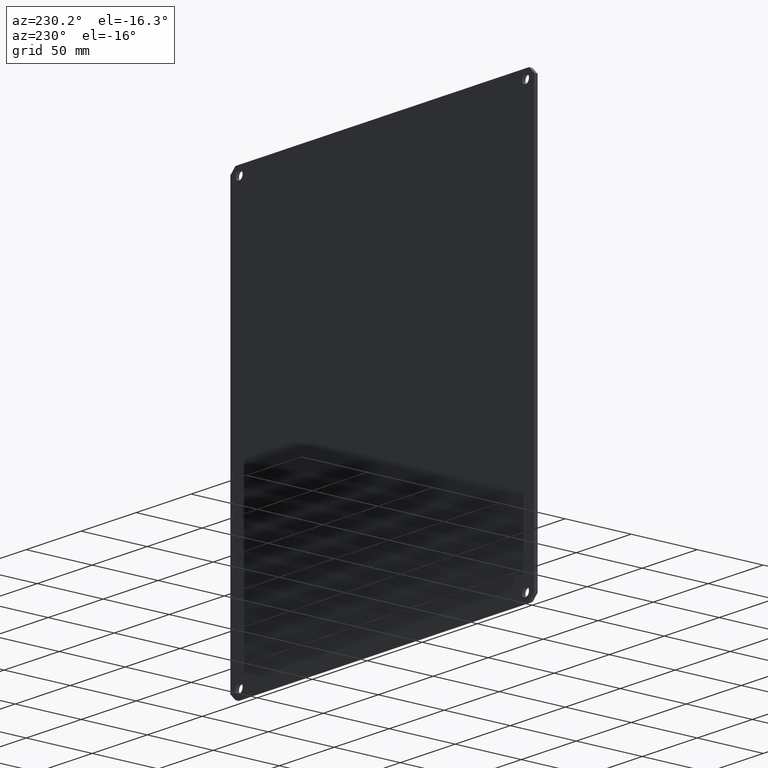
[diagram: clean part render]
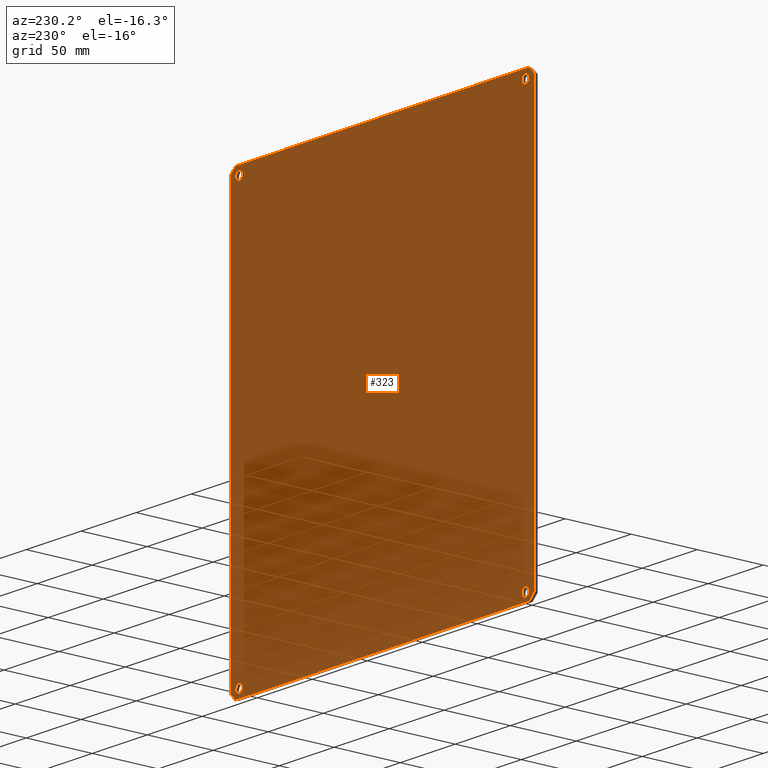
[diagram: same view with one face highlighted and labeled with its STEP entity id]
A machine part, auxiliary view. The second image highlights one B-rep face of the part: STEP entity #323.
In plain terms, the highlighted planar face has unit normal (0, 1, 0).
Its self-contained STEP definition (entity closure, byte-faithful):
#10 = VECTOR ( 'NONE', #126, 39.37007874015748900 ) ;
#17 = ORIENTED_EDGE ( 'NONE', *, *, #184, .T. ) ;
#28 = VERTEX_POINT ( 'NONE', #352 ) ;
#32 = VECTOR ( 'NONE', #183, 39.37007874015748100 ) ;
#36 = EDGE_CURVE ( 'NONE', #613, #439, #502, .T. ) ;
#38 = CARTESIAN_POINT ( 'NONE',  ( -0.9756477862797050500, -8.161220590614481900, 2.967902669980988100 ) ) ;
#40 = CIRCLE ( 'NONE', #555, 0.1249999999999993500 ) ;
#41 = ORIENTED_EDGE ( 'NONE', *, *, #223, .T. ) ;
#46 = EDGE_CURVE ( 'NONE', #367, #400, #218, .T. ) ;
#49 = VERTEX_POINT ( 'NONE', #75 ) ;
#51 = EDGE_CURVE ( 'NONE', #572, #314, #363, .T. ) ;
#65 = AXIS2_PLACEMENT_3D ( 'NONE', #509, #192, #563 ) ;
#71 = VECTOR ( 'NONE', #490, 39.37007874015748100 ) ;
#72 = EDGE_CURVE ( 'NONE', #82, #168, #487, .T. ) ;
#74 = VERTEX_POINT ( 'NONE', #180 ) ;
#75 = CARTESIAN_POINT ( 'NONE',  ( -11.22564778627970700, -8.161220590614481900, -9.157097330019011500 ) ) ;
#80 = DIRECTION ( 'NONE',  ( 0.0000000000000000000, 0.0000000000000000000, 1.000000000000000000 ) ) ;
#82 = VERTEX_POINT ( 'NONE', #181 ) ;
#88 = ORIENTED_EDGE ( 'NONE', *, *, #118, .F. ) ;
#89 = EDGE_CURVE ( 'NONE', #74, #154, #474, .T. ) ;
#90 = CARTESIAN_POINT ( 'NONE',  ( -0.9756477862797050500, -8.161220590614481900, 2.842902669980988100 ) ) ;
#96 = CARTESIAN_POINT ( 'NONE',  ( -11.22564778627970700, -8.161220590614481900, -9.407097330019011500 ) ) ;
#103 = EDGE_LOOP ( 'NONE', ( #284, #520 ) ) ;
#111 = ORIENTED_EDGE ( 'NONE', *, *, #46, .F. ) ;
#113 = LINE ( 'NONE', #513, #399 ) ;
#114 = EDGE_LOOP ( 'NONE', ( #88, #324 ) ) ;
#118 = EDGE_CURVE ( 'NONE', #439, #613, #303, .T. ) ;
#120 = CARTESIAN_POINT ( 'NONE',  ( -11.22564778627971000, -8.161220590614481900, 2.967902669980988100 ) ) ;
#126 = DIRECTION ( 'NONE',  ( -0.7071067811865474600, -0.0000000000000000000, 0.7071067811865474600 ) ) ;
#139 = CARTESIAN_POINT ( 'NONE',  ( -11.22564778627970700, -8.161220590614481900, -9.282097330019011500 ) ) ;
#141 = LINE ( 'NONE', #557, #10 ) ;
#142 = ORIENTED_EDGE ( 'NONE', *, *, #51, .T. ) ;
#147 = CARTESIAN_POINT ( 'NONE',  ( -0.8431477862797096500, -8.161220590614481900, 3.217902669980989000 ) ) ;
#149 = VECTOR ( 'NONE', #386, 39.37007874015748100 ) ;
#154 = VERTEX_POINT ( 'NONE', #422 ) ;
#158 = FACE_BOUND ( 'NONE', #114, .T. ) ;
#164 = EDGE_CURVE ( 'NONE', #341, #49, #40, .T. ) ;
#168 = VERTEX_POINT ( 'NONE', #90 ) ;
#178 = DIRECTION ( 'NONE',  ( 0.0000000000000000000, 0.0000000000000000000, 1.000000000000000000 ) ) ;
#180 = CARTESIAN_POINT ( 'NONE',  ( -0.6631477862797056100, -8.161220590614481900, 3.037902669980984800 ) ) ;
#181 = CARTESIAN_POINT ( 'NONE',  ( -0.9756477862797050500, -8.161220590614481900, 3.092902669980988100 ) ) ;
#183 = DIRECTION ( 'NONE',  ( -1.000000000000000000, -0.0000000000000000000, -0.0000000000000000000 ) ) ;
#184 = EDGE_CURVE ( 'NONE', #154, #353, #113, .T. ) ;
#186 = CARTESIAN_POINT ( 'NONE',  ( -11.53814778627970700, -8.161220590614481900, -9.532097330019011500 ) ) ;
#190 = DIRECTION ( 'NONE',  ( 0.0000000000000000000, 0.0000000000000000000, 1.000000000000000000 ) ) ;
#192 = DIRECTION ( 'NONE',  ( 0.0000000000000000000, 1.000000000000000000, 0.0000000000000000000 ) ) ;
#197 = DIRECTION ( 'NONE',  ( 0.0000000000000000000, 0.0000000000000000000, 1.000000000000000000 ) ) ;
#199 = EDGE_LOOP ( 'NONE', ( #429, #542 ) ) ;
#203 = VECTOR ( 'NONE', #236, 39.37007874015748900 ) ;
#208 = EDGE_CURVE ( 'NONE', #400, #367, #494, .T. ) ;
#216 = DIRECTION ( 'NONE',  ( 0.0000000000000000000, 1.000000000000000000, 0.0000000000000000000 ) ) ;
#218 = CIRCLE ( 'NONE', #628, 0.1250000000000004400 ) ;
#219 = DIRECTION ( 'NONE',  ( 0.7071067811865453500, -0.0000000000000000000, -0.7071067811865496800 ) ) ;
#223 = EDGE_CURVE ( 'NONE', #612, #572, #637, .T. ) ;
#231 = EDGE_LOOP ( 'NONE', ( #41, #142, #393, #364, #470, #17, #396, #495 ) ) ;
#235 = CARTESIAN_POINT ( 'NONE',  ( -11.53814778627970700, -8.161220590614481900, 3.217902669980988100 ) ) ;
#236 = DIRECTION ( 'NONE',  ( 0.7071067811865516800, -0.0000000000000000000, 0.7071067811865431300 ) ) ;
#240 = CARTESIAN_POINT ( 'NONE',  ( -0.6631477862797078300, -8.161220590614481900, -9.532097330019011500 ) ) ;
#243 = DIRECTION ( 'NONE',  ( -1.714100701906988900E-016, -0.0000000000000000000, -1.000000000000000000 ) ) ;
#247 = DIRECTION ( 'NONE',  ( 0.0000000000000000000, -0.0000000000000000000, 1.000000000000000000 ) ) ;
#274 = CARTESIAN_POINT ( 'NONE',  ( -11.53814778627970700, -8.161220590614481900, -9.532097330019011500 ) ) ;
#284 = ORIENTED_EDGE ( 'NONE', *, *, #72, .F. ) ;
#286 = CARTESIAN_POINT ( 'NONE',  ( -6.190647786279674500, -8.161220590614481900, 8.565402669980986900 ) ) ;
#290 = FACE_OUTER_BOUND ( 'NONE', #231, .T. ) ;
#294 = DIRECTION ( 'NONE',  ( 0.0000000000000000000, 1.000000000000000000, 0.0000000000000000000 ) ) ;
#301 = EDGE_CURVE ( 'NONE', #353, #28, #469, .T. ) ;
#302 = CARTESIAN_POINT ( 'NONE',  ( -11.35814778627970700, -8.161220590614481900, 3.217902669980988100 ) ) ;
#303 = CIRCLE ( 'NONE', #65, 0.1249999999999999000 ) ;
#313 = FACE_BOUND ( 'NONE', #199, .T. ) ;
#314 = VERTEX_POINT ( 'NONE', #302 ) ;
#317 = AXIS2_PLACEMENT_3D ( 'NONE', #430, #414, #190 ) ;
#323 = ADVANCED_FACE ( 'NONE', ( #570, #158, #313, #438, #290 ), #558, .T. ) ;
#324 = ORIENTED_EDGE ( 'NONE', *, *, #36, .F. ) ;
#325 = EDGE_CURVE ( 'NONE', #168, #82, #551, .T. ) ;
#334 = EDGE_LOOP ( 'NONE', ( #111, #586 ) ) ;
#338 = VECTOR ( 'NONE', #219, 39.37007874015748900 ) ;
#341 = VERTEX_POINT ( 'NONE', #96 ) ;
#342 = EDGE_CURVE ( 'NONE', #28, #612, #141, .T. ) ;
#352 = CARTESIAN_POINT ( 'NONE',  ( -11.35814778627970200, -8.161220590614481900, -9.532097330019013300 ) ) ;
#353 = VERTEX_POINT ( 'NONE', #425 ) ;
#356 = CARTESIAN_POINT ( 'NONE',  ( -11.53814778627970700, -8.161220590614481900, -9.352097330019008200 ) ) ;
#361 = LINE ( 'NONE', #286, #338 ) ;
#363 = LINE ( 'NONE', #553, #203 ) ;
#364 = ORIENTED_EDGE ( 'NONE', *, *, #493, .T. ) ;
#365 = AXIS2_PLACEMENT_3D ( 'NONE', #556, #216, #247 ) ;
#367 = VERTEX_POINT ( 'NONE', #598 ) ;
#386 = DIRECTION ( 'NONE',  ( 1.000000000000000000, 0.0000000000000000000, 0.0000000000000000000 ) ) ;
#393 = ORIENTED_EDGE ( 'NONE', *, *, #668, .T. ) ;
#396 = ORIENTED_EDGE ( 'NONE', *, *, #301, .T. ) ;
#399 = VECTOR ( 'NONE', #623, 39.37007874015748900 ) ;
#400 = VERTEX_POINT ( 'NONE', #650 ) ;
#413 = DIRECTION ( 'NONE',  ( 0.0000000000000000000, 1.000000000000000000, 0.0000000000000000000 ) ) ;
#414 = DIRECTION ( 'NONE',  ( 0.0000000000000000000, 1.000000000000000000, 0.0000000000000000000 ) ) ;
#422 = CARTESIAN_POINT ( 'NONE',  ( -0.6631477862797078300, -8.161220590614481900, -9.352097330019010000 ) ) ;
#425 = CARTESIAN_POINT ( 'NONE',  ( -0.8431477862797085400, -8.161220590614481900, -9.532097330019011500 ) ) ;
#429 = ORIENTED_EDGE ( 'NONE', *, *, #436, .F. ) ;
#430 = CARTESIAN_POINT ( 'NONE',  ( -0.9756477862797050500, -8.161220590614481900, 2.967902669980988100 ) ) ;
#436 = EDGE_CURVE ( 'NONE', #49, #341, #501, .T. ) ;
#438 = FACE_BOUND ( 'NONE', #334, .T. ) ;
#439 = VERTEX_POINT ( 'NONE', #534 ) ;
#446 = AXIS2_PLACEMENT_3D ( 'NONE', #573, #592, #515 ) ;
#448 = VERTEX_POINT ( 'NONE', #147 ) ;
#456 = CARTESIAN_POINT ( 'NONE',  ( -11.53814778627970700, -8.161220590614481900, 3.037902669980989200 ) ) ;
#461 = VECTOR ( 'NONE', #243, 39.37007874015748100 ) ;
#469 = LINE ( 'NONE', #186, #32 ) ;
#470 = ORIENTED_EDGE ( 'NONE', *, *, #89, .T. ) ;
#474 = LINE ( 'NONE', #240, #461 ) ;
#487 = CIRCLE ( 'NONE', #588, 0.1249999999999999000 ) ;
#490 = DIRECTION ( 'NONE',  ( 8.570503509534944300E-017, 0.0000000000000000000, 1.000000000000000000 ) ) ;
#493 = EDGE_CURVE ( 'NONE', #448, #74, #361, .T. ) ;
#494 = CIRCLE ( 'NONE', #446, 0.1250000000000004400 ) ;
#495 = ORIENTED_EDGE ( 'NONE', *, *, #342, .T. ) ;
#498 = DIRECTION ( 'NONE',  ( 0.0000000000000000000, 1.000000000000000000, 0.0000000000000000000 ) ) ;
#501 = CIRCLE ( 'NONE', #594, 0.1249999999999993500 ) ;
#502 = CIRCLE ( 'NONE', #615, 0.1249999999999999000 ) ;
#508 = CARTESIAN_POINT ( 'NONE',  ( -11.22564778627971000, -8.161220590614481900, 2.842902669980988100 ) ) ;
#509 = CARTESIAN_POINT ( 'NONE',  ( -11.22564778627971000, -8.161220590614481900, 2.967902669980988100 ) ) ;
#513 = CARTESIAN_POINT ( 'NONE',  ( 0.1843522137202257300, -8.161220590614481900, -8.504597330019086200 ) ) ;
#515 = DIRECTION ( 'NONE',  ( 0.0000000000000000000, 0.0000000000000000000, 1.000000000000000000 ) ) ;
#517 = DIRECTION ( 'NONE',  ( 0.0000000000000000000, 1.000000000000000000, 0.0000000000000000000 ) ) ;
#520 = ORIENTED_EDGE ( 'NONE', *, *, #325, .F. ) ;
#534 = CARTESIAN_POINT ( 'NONE',  ( -11.22564778627971000, -8.161220590614481900, 3.092902669980988100 ) ) ;
#542 = ORIENTED_EDGE ( 'NONE', *, *, #164, .F. ) ;
#551 = CIRCLE ( 'NONE', #317, 0.1249999999999999000 ) ;
#553 = CARTESIAN_POINT ( 'NONE',  ( -11.44814778627970700, -8.161220590614481900, 3.127902669980987300 ) ) ;
#555 = AXIS2_PLACEMENT_3D ( 'NONE', #139, #517, #197 ) ;
#556 = CARTESIAN_POINT ( 'NONE',  ( -11.53814778627970700, -8.161220590614481900, 3.217902669980988100 ) ) ;
#557 = CARTESIAN_POINT ( 'NONE',  ( -17.82314778627970500, -8.161220590614481900, -3.067097330019010300 ) ) ;
#558 = PLANE ( 'NONE',  #365 ) ;
#563 = DIRECTION ( 'NONE',  ( 0.0000000000000000000, 0.0000000000000000000, 1.000000000000000000 ) ) ;
#570 = FACE_BOUND ( 'NONE', #103, .T. ) ;
#572 = VERTEX_POINT ( 'NONE', #456 ) ;
#573 = CARTESIAN_POINT ( 'NONE',  ( -0.9756477862797061600, -8.161220590614481900, -9.282097330019013300 ) ) ;
#574 = CARTESIAN_POINT ( 'NONE',  ( -11.22564778627970700, -8.161220590614481900, -9.282097330019011500 ) ) ;
#578 = DIRECTION ( 'NONE',  ( 0.0000000000000000000, 0.0000000000000000000, 1.000000000000000000 ) ) ;
#582 = DIRECTION ( 'NONE',  ( 0.0000000000000000000, 1.000000000000000000, 0.0000000000000000000 ) ) ;
#586 = ORIENTED_EDGE ( 'NONE', *, *, #208, .F. ) ;
#588 = AXIS2_PLACEMENT_3D ( 'NONE', #38, #413, #80 ) ;
#590 = LINE ( 'NONE', #235, #149 ) ;
#592 = DIRECTION ( 'NONE',  ( 0.0000000000000000000, 1.000000000000000000, 0.0000000000000000000 ) ) ;
#594 = AXIS2_PLACEMENT_3D ( 'NONE', #574, #582, #578 ) ;
#598 = CARTESIAN_POINT ( 'NONE',  ( -0.9756477862797061600, -8.161220590614481900, -9.157097330019011500 ) ) ;
#606 = CARTESIAN_POINT ( 'NONE',  ( -0.9756477862797061600, -8.161220590614481900, -9.282097330019013300 ) ) ;
#612 = VERTEX_POINT ( 'NONE', #356 ) ;
#613 = VERTEX_POINT ( 'NONE', #508 ) ;
#615 = AXIS2_PLACEMENT_3D ( 'NONE', #120, #498, #178 ) ;
#623 = DIRECTION ( 'NONE',  ( -0.7071067811865516800, -0.0000000000000000000, -0.7071067811865431300 ) ) ;
#628 = AXIS2_PLACEMENT_3D ( 'NONE', #606, #294, #663 ) ;
#637 = LINE ( 'NONE', #274, #71 ) ;
#650 = CARTESIAN_POINT ( 'NONE',  ( -0.9756477862797061600, -8.161220590614481900, -9.407097330019013300 ) ) ;
#663 = DIRECTION ( 'NONE',  ( 0.0000000000000000000, 0.0000000000000000000, 1.000000000000000000 ) ) ;
#668 = EDGE_CURVE ( 'NONE', #314, #448, #590, .T. ) ;